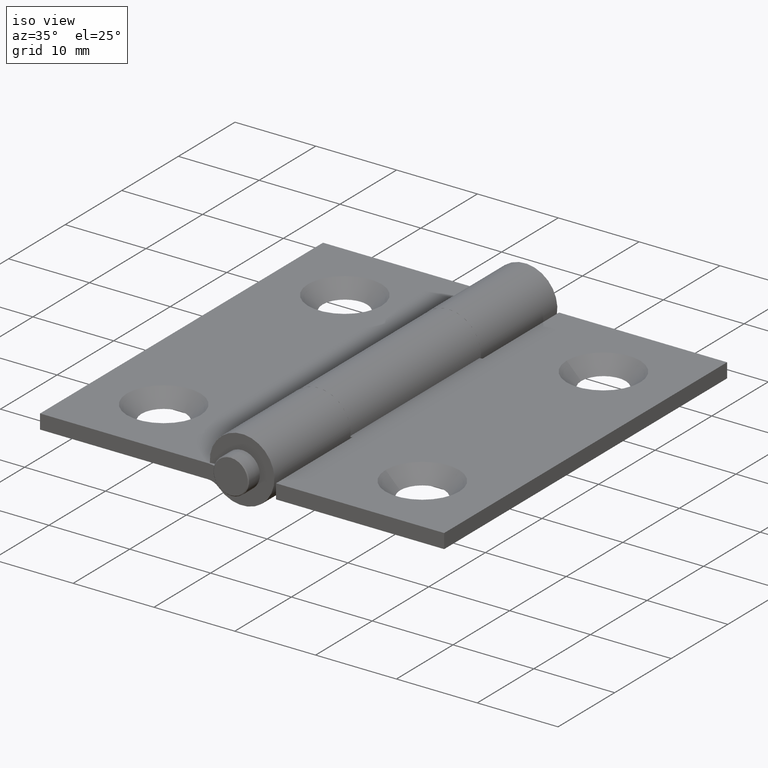
[diagram: clean part render]
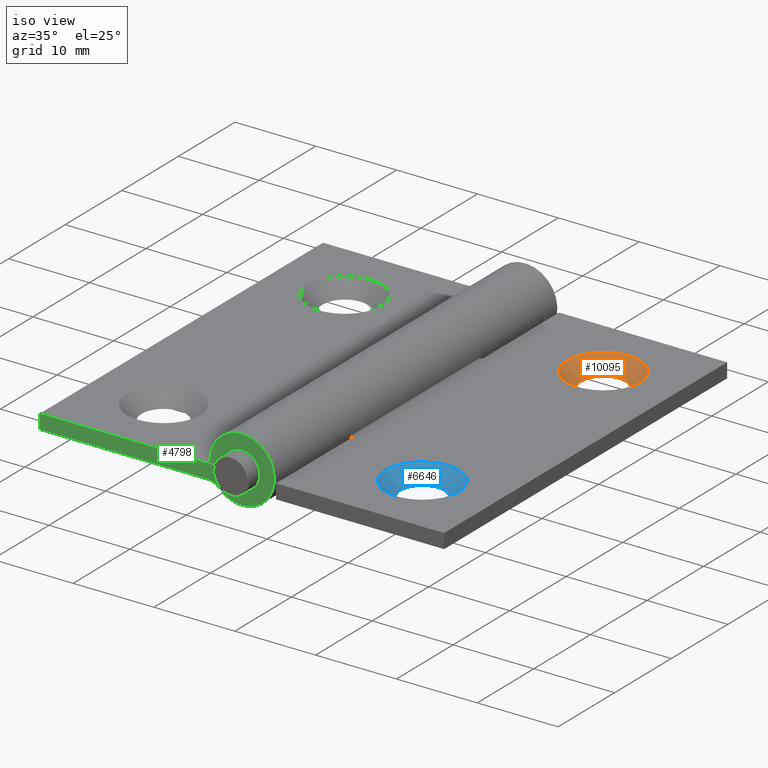
[diagram: same view with three faces highlighted in distinct colors, each labeled with its STEP entity id]
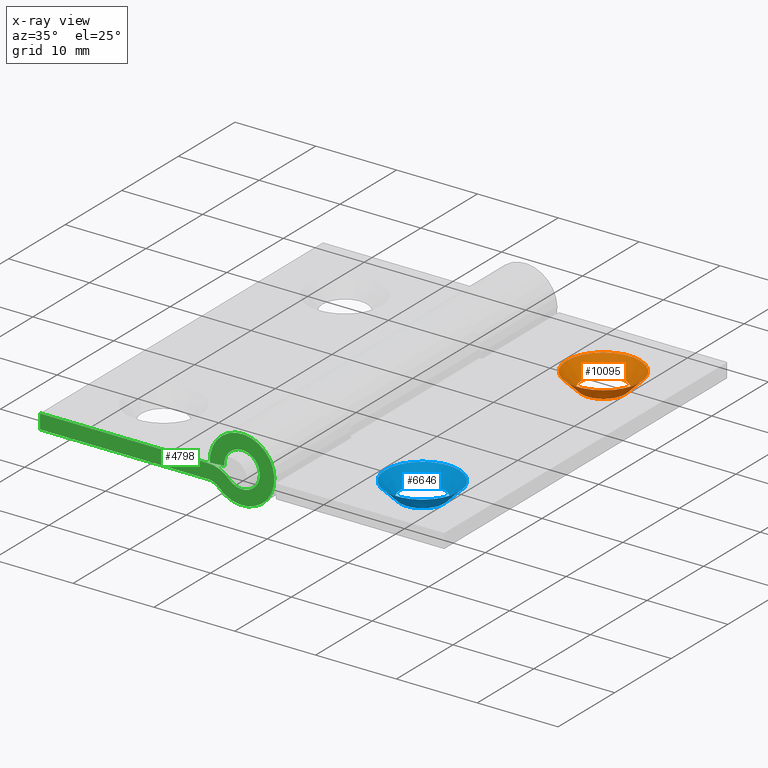
[diagram: x-ray of the same camera — body ghosted, the three highlighted faces saturated]
A machine part, iso view with three faces highlighted in distinct colors.
The next image is the same camera in x-ray (body ghosted, the three faces saturated) — at least one of them is partly hidden behind the body in this view.
Their STEP definitions:

[orange] entity #10095 — the highlighted conical surface has half-angle 45 deg.
#626 = EDGE_LOOP ( 'NONE', ( #3575 ) ) ;
#832 = CARTESIAN_POINT ( 'NONE',  ( -13.25000000000000533, -16.00000000000000355, -2.200000000000000178 ) ) ;
#845 = AXIS2_PLACEMENT_3D ( 'NONE', #3764, #11108, #6506 ) ;
#1487 = CONICAL_SURFACE ( 'NONE', #845, 2.749999999999999112, 0.7853981633974514986 ) ;
#1531 = DIRECTION ( 'NONE',  ( 0.000000000000000000, 0.000000000000000000, 1.000000000000000000 ) ) ;
#1602 = VERTEX_POINT ( 'NONE', #832 ) ;
#1837 = CIRCLE ( 'NONE', #7673, 4.549999999999998934 ) ;
#2412 = DIRECTION ( 'NONE',  ( 0.000000000000000000, 0.000000000000000000, -1.000000000000000000 ) ) ;
#2616 = FACE_OUTER_BOUND ( 'NONE', #626, .T. ) ;
#3323 = EDGE_CURVE ( 'NONE', #1602, #1602, #3999, .T. ) ;
#3575 = ORIENTED_EDGE ( 'NONE', *, *, #4179, .F. ) ;
#3764 = CARTESIAN_POINT ( 'NONE',  ( -16.00000000000000355, -16.00000000000000355, -2.199999999999989075 ) ) ;
#3999 = CIRCLE ( 'NONE', #4738, 2.749999999999999112 ) ;
#4179 = EDGE_CURVE ( 'NONE', #9197, #9197, #1837, .T. ) ;
#4531 = ORIENTED_EDGE ( 'NONE', *, *, #3323, .F. ) ;
#4738 = AXIS2_PLACEMENT_3D ( 'NONE', #5936, #1531, #5056 ) ;
#5056 = DIRECTION ( 'NONE',  ( 1.000000000000000000, 0.000000000000000000, 0.000000000000000000 ) ) ;
#5936 = CARTESIAN_POINT ( 'NONE',  ( -16.00000000000000355, -16.00000000000000355, -2.200000000000000178 ) ) ;
#6506 = DIRECTION ( 'NONE',  ( 1.000000000000000000, 0.000000000000000000, 0.000000000000000000 ) ) ;
#7673 = AXIS2_PLACEMENT_3D ( 'NONE', #7990, #2412, #10706 ) ;
#7990 = CARTESIAN_POINT ( 'NONE',  ( -16.00000000000000355, -16.00000000000000355, -0.4000000000000001887 ) ) ;
#9125 = CARTESIAN_POINT ( 'NONE',  ( -20.55000000000000071, -16.00000000000000355, -0.4000000000000001887 ) ) ;
#9197 = VERTEX_POINT ( 'NONE', #9125 ) ;
#9650 = FACE_BOUND ( 'NONE', #11213, .T. ) ;
#10095 = ADVANCED_FACE ( 'NONE', ( #2616, #9650 ), #1487, .F. ) ;
#10706 = DIRECTION ( 'NONE',  ( -1.000000000000000000, 0.000000000000000000, 0.000000000000000000 ) ) ;
#11108 = DIRECTION ( 'NONE',  ( 0.000000000000000000, 0.000000000000000000, 1.000000000000000000 ) ) ;
#11213 = EDGE_LOOP ( 'NONE', ( #4531 ) ) ;

[blue] entity #6646 — the highlighted conical surface has half-angle 45 deg.
#919 = DIRECTION ( 'NONE',  ( 1.000000000000000000, 0.000000000000000000, 0.000000000000000000 ) ) ;
#1224 = FACE_OUTER_BOUND ( 'NONE', #7080, .T. ) ;
#1677 = DIRECTION ( 'NONE',  ( -1.000000000000000000, 0.000000000000000000, 0.000000000000000000 ) ) ;
#2573 = DIRECTION ( 'NONE',  ( 0.000000000000000000, 0.000000000000000000, 1.000000000000000000 ) ) ;
#2853 = EDGE_CURVE ( 'NONE', #11638, #11638, #3865, .T. ) ;
#3469 = EDGE_CURVE ( 'NONE', #4332, #4332, #10444, .T. ) ;
#3484 = CARTESIAN_POINT ( 'NONE',  ( -16.00000000000000711, 15.99999999999999645, -2.200000000000000178 ) ) ;
#3865 = CIRCLE ( 'NONE', #4863, 2.749999999999997335 ) ;
#3884 = ORIENTED_EDGE ( 'NONE', *, *, #2853, .F. ) ;
#4332 = VERTEX_POINT ( 'NONE', #10008 ) ;
#4399 = DIRECTION ( 'NONE',  ( 1.000000000000000000, 0.000000000000000000, 0.000000000000000000 ) ) ;
#4675 = CONICAL_SURFACE ( 'NONE', #8821, 2.749999999999997335, 0.7853981633974514986 ) ;
#4863 = AXIS2_PLACEMENT_3D ( 'NONE', #3484, #6420, #919 ) ;
#5812 = FACE_BOUND ( 'NONE', #11381, .T. ) ;
#6420 = DIRECTION ( 'NONE',  ( 0.000000000000000000, 0.000000000000000000, 1.000000000000000000 ) ) ;
#6646 = ADVANCED_FACE ( 'NONE', ( #1224, #5812 ), #4675, .F. ) ;
#7080 = EDGE_LOOP ( 'NONE', ( #9553 ) ) ;
#7095 = CARTESIAN_POINT ( 'NONE',  ( -16.00000000000000711, 15.99999999999999645, -2.199999999999989519 ) ) ;
#7109 = DIRECTION ( 'NONE',  ( 0.000000000000000000, 0.000000000000000000, -1.000000000000000000 ) ) ;
#7572 = AXIS2_PLACEMENT_3D ( 'NONE', #8050, #7109, #1677 ) ;
#8050 = CARTESIAN_POINT ( 'NONE',  ( -16.00000000000000711, 15.99999999999999645, -0.4000000000000001887 ) ) ;
#8821 = AXIS2_PLACEMENT_3D ( 'NONE', #7095, #2573, #4399 ) ;
#9553 = ORIENTED_EDGE ( 'NONE', *, *, #3469, .F. ) ;
#10008 = CARTESIAN_POINT ( 'NONE',  ( -20.55000000000000426, 15.99999999999999645, -0.4000000000000001887 ) ) ;
#10444 = CIRCLE ( 'NONE', #7572, 4.549999999999998934 ) ;
#10922 = CARTESIAN_POINT ( 'NONE',  ( -13.25000000000001066, 15.99999999999999645, -2.200000000000000178 ) ) ;
#11381 = EDGE_LOOP ( 'NONE', ( #3884 ) ) ;
#11638 = VERTEX_POINT ( 'NONE', #10922 ) ;

[green] entity #4798 — the highlighted planar face has unit normal (0, -1, 0).
#116 = VERTEX_POINT ( 'NONE', #8635 ) ;
#349 = LINE ( 'NONE', #11706, #1908 ) ;
#433 = CARTESIAN_POINT ( 'NONE',  ( -2.896551724137928385, -25.00000000000000000, -2.758620689655172598 ) ) ;
#657 = DIRECTION ( 'NONE',  ( 0.000000000000000000, 0.000000000000000000, -1.000000000000000000 ) ) ;
#858 = CARTESIAN_POINT ( 'NONE',  ( -3.988734135035826078, -25.00000000000000000, -0.3000000000000001554 ) ) ;
#875 = DIRECTION ( 'NONE',  ( 0.000000000000000000, 0.000000000000000000, -1.000000000000000000 ) ) ;
#1042 = ORIENTED_EDGE ( 'NONE', *, *, #4249, .F. ) ;
#1292 = AXIS2_PLACEMENT_3D ( 'NONE', #11567, #11601, #7045 ) ;
#1671 = AXIS2_PLACEMENT_3D ( 'NONE', #7745, #9530, #2224 ) ;
#1890 = ORIENTED_EDGE ( 'NONE', *, *, #9373, .F. ) ;
#1908 = VECTOR ( 'NONE', #8992, 1000.000000000000000 ) ;
#2155 = CARTESIAN_POINT ( 'NONE',  ( -4.199999999999996625, -25.00000000000000000, -0.4000000000000001887 ) ) ;
#2212 = CARTESIAN_POINT ( 'NONE',  ( -25.00000000000000000, -25.00000000000000000, -0.4000000000000001887 ) ) ;
#2224 = DIRECTION ( 'NONE',  ( 0.000000000000000000, -0.000000000000000000, -1.000000000000000000 ) ) ;
#2267 = VERTEX_POINT ( 'NONE', #2212 ) ;
#2517 = AXIS2_PLACEMENT_3D ( 'NONE', #5525, #6498, #875 ) ;
#2698 = CIRCLE ( 'NONE', #11574, 3.600000000000000089 ) ;
#2943 = CARTESIAN_POINT ( 'NONE',  ( -1.593103448275860368, -25.00000000000000000, -1.517241379310343641 ) ) ;
#3073 = CIRCLE ( 'NONE', #2517, 1.799999999999999600 ) ;
#3366 = ORIENTED_EDGE ( 'NONE', *, *, #8006, .F. ) ;
#3414 = DIRECTION ( 'NONE',  ( 0.000000000000000000, 1.000000000000000000, -0.000000000000000000 ) ) ;
#3578 = CARTESIAN_POINT ( 'NONE',  ( -25.00000000000000000, -25.00000000000000000, -0.4000000000000001887 ) ) ;
#3620 = EDGE_CURVE ( 'NONE', #5487, #10700, #8431, .T. ) ;
#3670 = EDGE_CURVE ( 'NONE', #8356, #6410, #6288, .T. ) ;
#4249 = EDGE_CURVE ( 'NONE', #9529, #7096, #2698, .T. ) ;
#4516 = CARTESIAN_POINT ( 'NONE',  ( 0.000000000000000000, -25.00000000000000000, 0.000000000000000000 ) ) ;
#4797 = CARTESIAN_POINT ( 'NONE',  ( -3.988734135035824302, -25.00000000000000000, -0.2999999999999999334 ) ) ;
#4798 = ADVANCED_FACE ( 'NONE', ( #5135 ), #6820, .T. ) ;
#4962 = AXIS2_PLACEMENT_3D ( 'NONE', #4516, #10928, #9171 ) ;
#5135 = FACE_OUTER_BOUND ( 'NONE', #11040, .T. ) ;
#5393 = LINE ( 'NONE', #3578, #5678 ) ;
#5472 = LINE ( 'NONE', #858, #8350 ) ;
#5487 = VERTEX_POINT ( 'NONE', #4797 ) ;
#5525 = CARTESIAN_POINT ( 'NONE',  ( -4.199999999999997513, -25.00000000000000000, -4.000000000000000000 ) ) ;
#5678 = VECTOR ( 'NONE', #10000, 1000.000000000000000 ) ;
#6278 = ORIENTED_EDGE ( 'NONE', *, *, #9321, .F. ) ;
#6288 = LINE ( 'NONE', #10203, #9584 ) ;
#6410 = VERTEX_POINT ( 'NONE', #9734 ) ;
#6439 = DIRECTION ( 'NONE',  ( -0.9971835337589565196, -0.000000000000000000, -0.07500000000000020539 ) ) ;
#6498 = DIRECTION ( 'NONE',  ( -0.000000000000000000, -1.000000000000000000, 0.000000000000000000 ) ) ;
#6785 = EDGE_CURVE ( 'NONE', #2267, #9529, #5393, .T. ) ;
#6794 = ORIENTED_EDGE ( 'NONE', *, *, #3670, .F. ) ;
#6820 = PLANE ( 'NONE',  #1671 ) ;
#6961 = CARTESIAN_POINT ( 'NONE',  ( -4.199999999999997513, -25.00000000000000000, -2.200000000000000178 ) ) ;
#7045 = DIRECTION ( 'NONE',  ( 0.000000000000000000, 0.000000000000000000, 1.000000000000000000 ) ) ;
#7096 = VERTEX_POINT ( 'NONE', #2943 ) ;
#7745 = CARTESIAN_POINT ( 'NONE',  ( -4.199999999999997513, -25.00000000000000000, -4.000000000000000000 ) ) ;
#7829 = ORIENTED_EDGE ( 'NONE', *, *, #10860, .F. ) ;
#8006 = EDGE_CURVE ( 'NONE', #10700, #8356, #3073, .T. ) ;
#8350 = VECTOR ( 'NONE', #6439, 1000.000000000000000 ) ;
#8356 = VERTEX_POINT ( 'NONE', #6961 ) ;
#8431 = CIRCLE ( 'NONE', #4962, 3.999999999999998224 ) ;
#8635 = CARTESIAN_POINT ( 'NONE',  ( -2.193803774269702522, -25.00000000000000000, -0.1649999999999996192 ) ) ;
#8911 = CARTESIAN_POINT ( 'NONE',  ( -4.199999999999997513, -25.00000000000000000, -4.000000000000000000 ) ) ;
#8992 = DIRECTION ( 'NONE',  ( -0.000000000000000000, -0.000000000000000000, 1.000000000000000000 ) ) ;
#9171 = DIRECTION ( 'NONE',  ( 0.000000000000000000, 0.000000000000000000, 1.000000000000000000 ) ) ;
#9321 = EDGE_CURVE ( 'NONE', #7096, #116, #11805, .T. ) ;
#9373 = EDGE_CURVE ( 'NONE', #6410, #2267, #349, .T. ) ;
#9529 = VERTEX_POINT ( 'NONE', #2155 ) ;
#9530 = DIRECTION ( 'NONE',  ( 0.000000000000000000, -1.000000000000000000, 0.000000000000000000 ) ) ;
#9584 = VECTOR ( 'NONE', #11251, 1000.000000000000000 ) ;
#9734 = CARTESIAN_POINT ( 'NONE',  ( -25.00000000000000000, -25.00000000000000000, -2.200000000000000178 ) ) ;
#10000 = DIRECTION ( 'NONE',  ( 1.000000000000000000, 0.000000000000000000, 0.000000000000000000 ) ) ;
#10203 = CARTESIAN_POINT ( 'NONE',  ( -25.00000000000000000, -25.00000000000000000, -2.200000000000000178 ) ) ;
#10700 = VERTEX_POINT ( 'NONE', #433 ) ;
#10860 = EDGE_CURVE ( 'NONE', #116, #5487, #5472, .T. ) ;
#10928 = DIRECTION ( 'NONE',  ( 0.000000000000000000, 1.000000000000000000, 0.000000000000000000 ) ) ;
#11040 = EDGE_LOOP ( 'NONE', ( #1890, #6794, #3366, #11226, #7829, #6278, #1042, #11289 ) ) ;
#11226 = ORIENTED_EDGE ( 'NONE', *, *, #3620, .F. ) ;
#11251 = DIRECTION ( 'NONE',  ( -1.000000000000000000, -0.000000000000000000, -0.000000000000000000 ) ) ;
#11289 = ORIENTED_EDGE ( 'NONE', *, *, #6785, .F. ) ;
#11567 = CARTESIAN_POINT ( 'NONE',  ( 0.000000000000000000, -25.00000000000000000, 0.000000000000000000 ) ) ;
#11574 = AXIS2_PLACEMENT_3D ( 'NONE', #8911, #3414, #657 ) ;
#11601 = DIRECTION ( 'NONE',  ( -0.000000000000000000, -1.000000000000000000, -0.000000000000000000 ) ) ;
#11706 = CARTESIAN_POINT ( 'NONE',  ( -25.00000000000000000, -25.00000000000000000, -0.4000000000000001887 ) ) ;
#11805 = CIRCLE ( 'NONE', #1292, 2.199999999999997957 ) ;